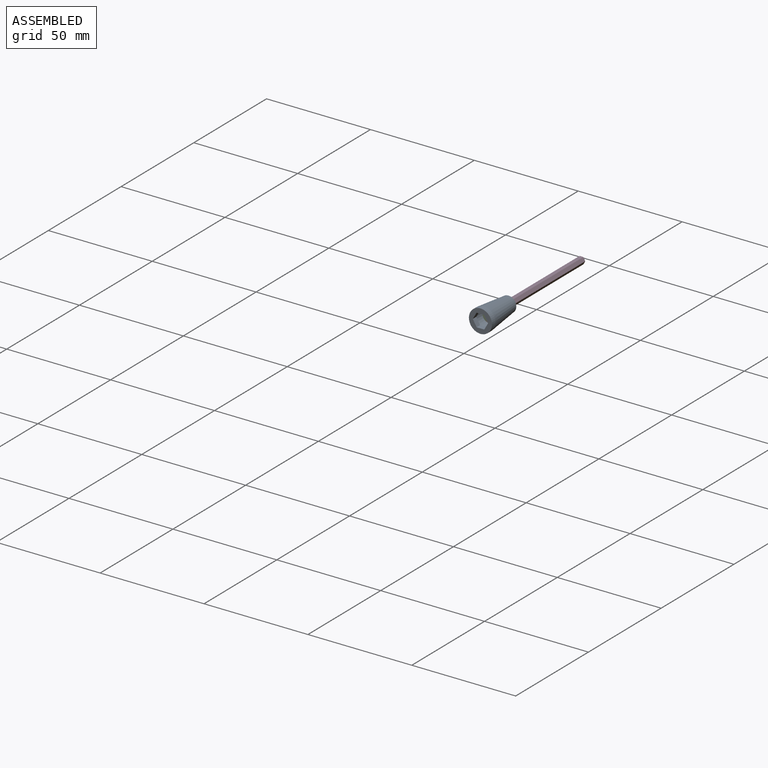
[diagram: assembled view]
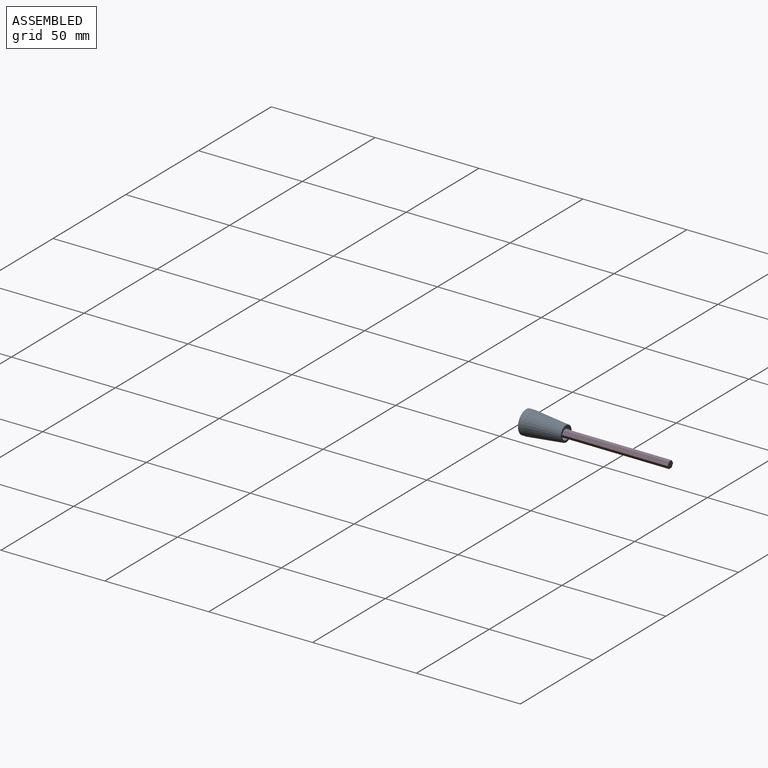
[diagram: assembled view, second angle]
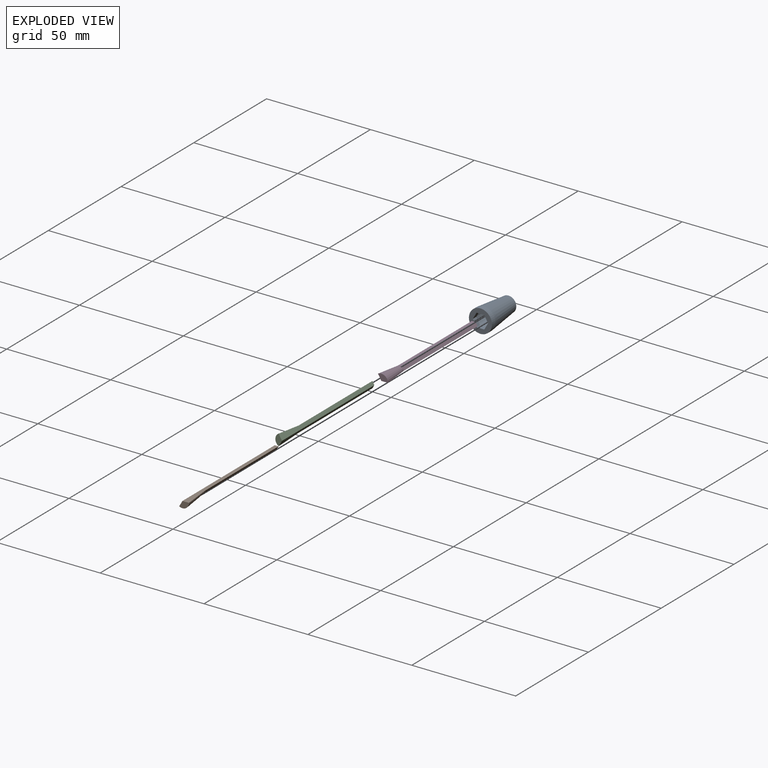
[diagram: exploded view]
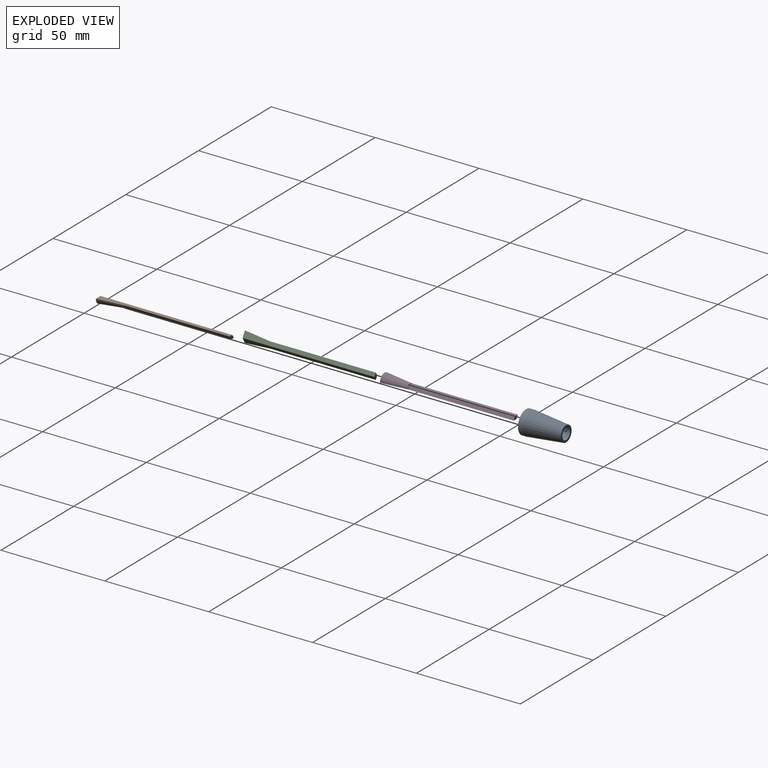
[diagram: exploded view, second angle]
ASSEMBLY  parts=4 mates=3
PART A: 12 faces, bbox 11.1x19.3x11.1 mm
  f0: cone r=2.85mm half-angle=6.1deg, axis (0,-1,0), area 496.9mm2, adj f2,f10
  f1: cone r=1.83mm half-angle=6deg, axis (0,-1,0), area 387.5mm2, adj f2,f3
  f2: plane 7.49x7.49mm, normal (0,1,0), area 20.7mm2, adj f0,f1
  f3: plane 9.03x9.03mm, normal (0,1,0), area 29.2mm2, adj f1,f4,f5,f6,f7,f8,f9
  f4: plane 3.67x2.38mm, normal (-1,0,0), area 8.7mm2, adj f3,f5,f9,f11
  f5: plane 3.18x2.38mm, normal (-0.5,0,0.87), area 8.7mm2, adj f3,f4,f6,f11
  f6: plane 3.18x2.38mm, normal (0.5,0,0.87), area 8.7mm2, adj f3,f5,f7,f11
  f7: plane 3.67x2.38mm, normal (1,0,0), area 8.7mm2, adj f3,f6,f8,f11
  f8: plane 3.18x2.38mm, normal (0.5,0,-0.87), area 8.7mm2, adj f3,f7,f9,f11
  f9: plane 3.18x2.38mm, normal (-0.5,0,-0.87), area 8.7mm2, adj f3,f4,f8,f11
  f10: cylinder r=5.54mm len=11.08mm, axis (0,1,0), area 82.9mm2, adj f0,f11
  f11: plane 11.08x11.08mm, normal (0,-1,0), area 61.5mm2, adj f4,f5,f6,f7,f8,f9,f10
PART B: 9 faces, bbox 4.8x63.5x3.2 mm
  f0: plane 1.59x0.92mm, normal (0,1,0), area 0.3mm2, adj f5,f7
  f1: plane 1.83x0.25mm, normal (0,1,0), area 0.3mm2, adj f5,f6
  f2: plane 4.76x3.18mm, normal (0,-1,0), area 10.6mm2, adj f3,f4,f5
  f3: plane 63.5x3.18mm, normal (0,0,-1), area 124.9mm2, adj f2,f4,f5,f7,f8
  f4: plane 63.5x2.75mm, normal (-0.87,0,-0.5), area 124.9mm2, adj f2,f3,f5,f6,f8
  f5: cone r=3.17mm half-angle=6deg, axis (0,-1,0), area 67mm2, adj f0,f1,f2,f3,f4
  f6: plane 50.8x1.83mm, normal (0,0,1), area 93.1mm2, adj f1,f4,f7,f8
  f7: plane 50.8x1.59mm, normal (0.87,0,0.5), area 93.1mm2, adj f0,f3,f6,f8
  f8: plane 2.75x1.59mm, normal (0,1,0), area 2.9mm2, adj f3,f4,f6,f7
PART C: same geometry as B
PART D: same geometry as B
PLACE A rot(axis=(0,-1,0),30deg) t=(-0.61,-9.95,-1.69)mm
PLACE B rot(axis=(0,1,0),120deg) t=(-0.61,-19.05,-1.69)mm
PLACE C rot(axis=(0,-1,0),120deg) t=(-0.61,-19.05,-1.69)mm
PLACE D t=(-0.61,-19.05,-1.69)mm fixed
MATE planar B.f4 <-> D.f3  axis (0,0,1) through (0.98,-31.75,-1.69)mm
MATE fastened C.f3 <-> D.f4  axis (0.87,0,0.5) through (-1.11,-1.88,-0.82)mm
MATE slider A.f1 <-> C.f5  axis (0,1,0) through (-0.61,-18.41,-1.69)mm
